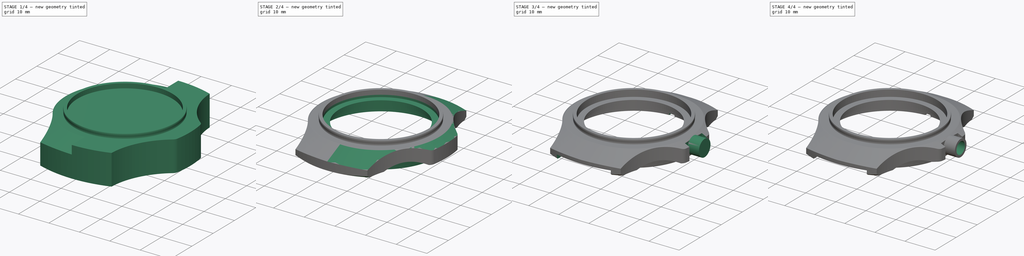
[diagram: build sequence overview — one tinted view per stage of 4, left to right]
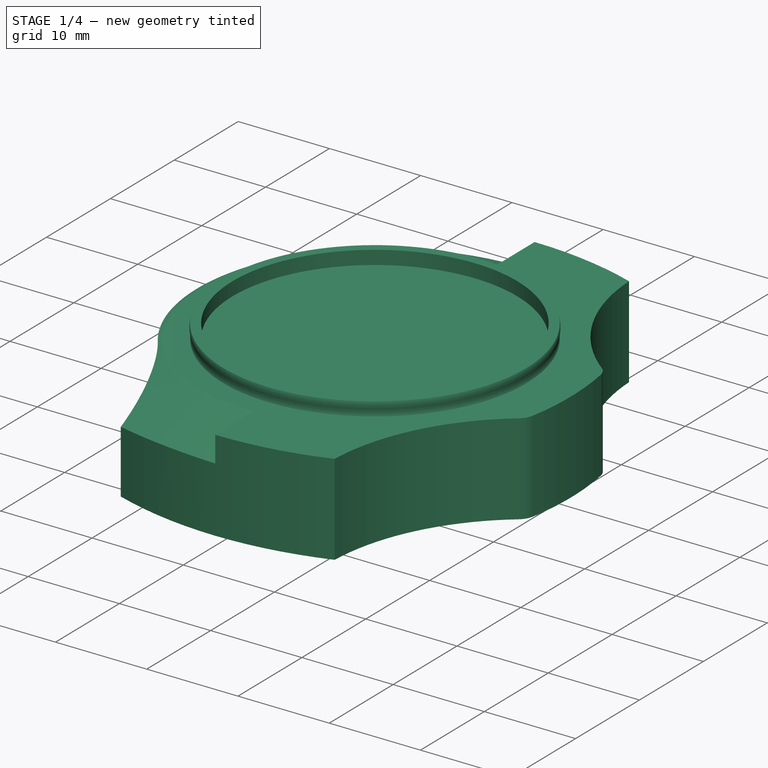
[diagram: stage 1 of 4 — iso view after this stage's code; geometry added in this stage tinted green]
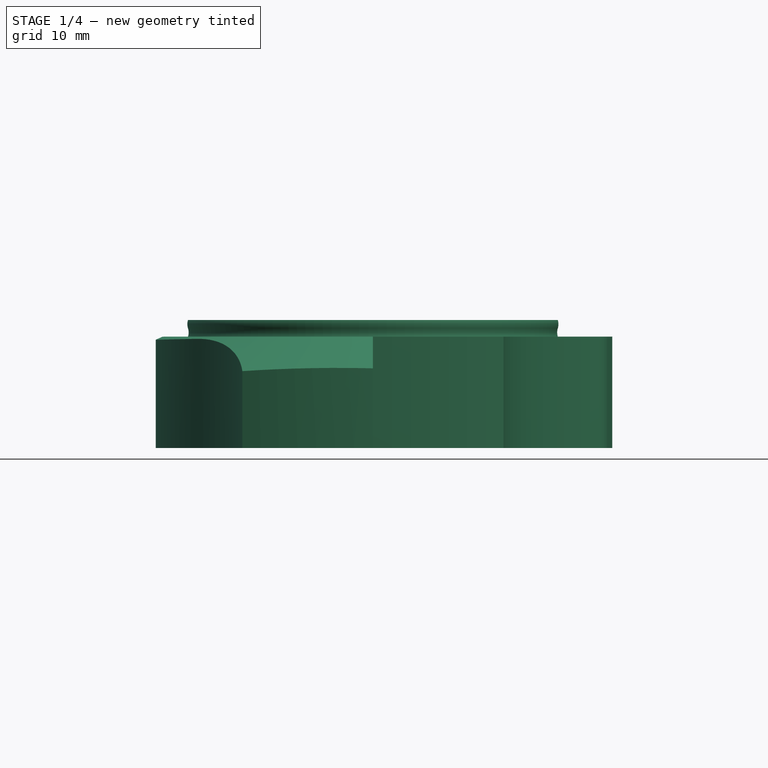
[diagram: stage 1 of 4 — front view after this stage's code; geometry added in this stage tinted green]
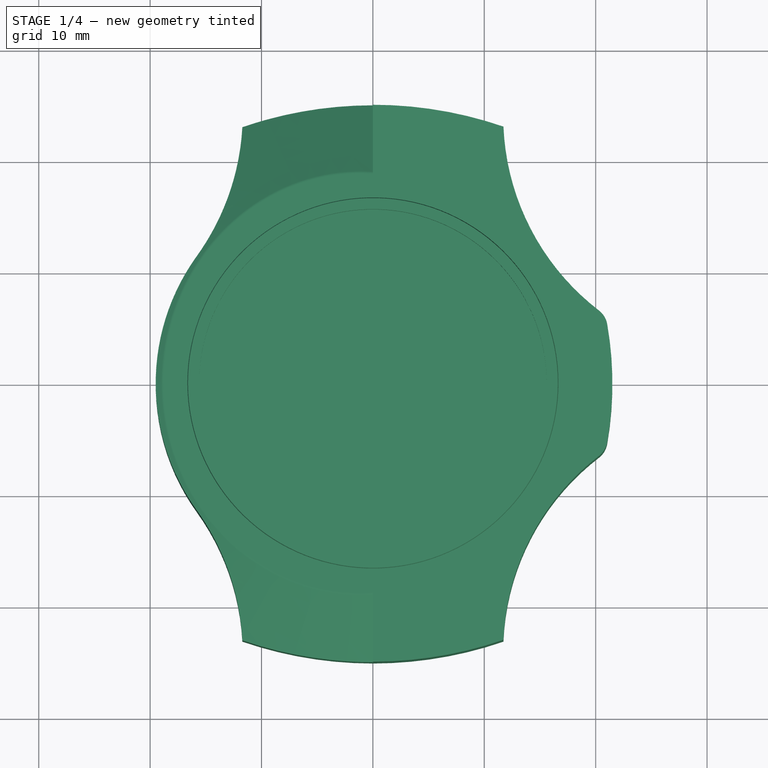
[diagram: stage 1 of 4 — top view after this stage's code; geometry added in this stage tinted green]
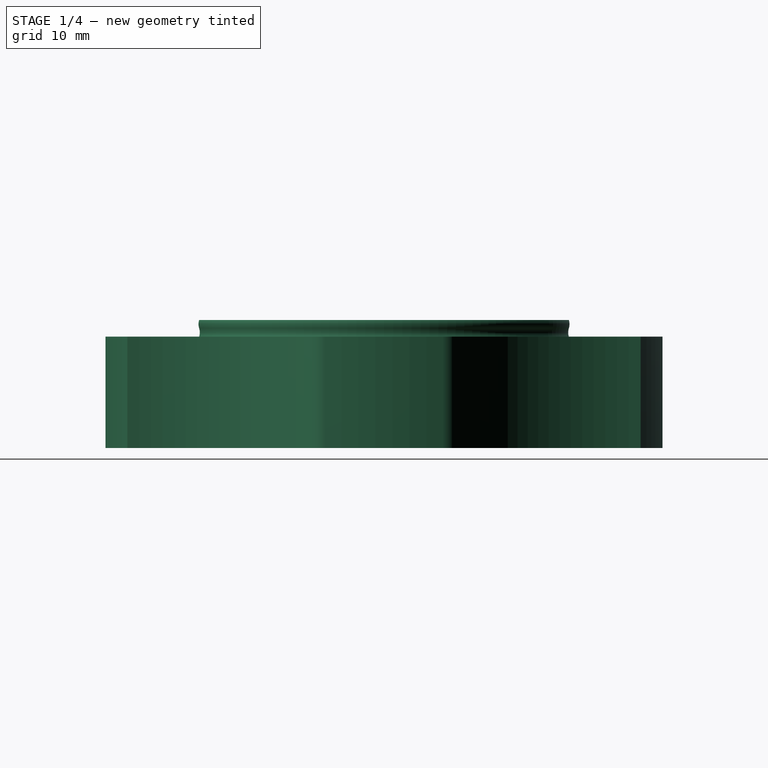
[diagram: stage 1 of 4 — right view after this stage's code; geometry added in this stage tinted green]
FCSTD DOCUMENT  (FreeCAD 0.19R20415 (Git))
Label: Vostok_Amphibia_Case_060
License: All rights reserved
LicenseURL: http://en.wikipedia.org/wiki/All_rights_reserved
objects: Sketcher::SketchObject×15, PartDesign::Pocket×6, PartDesign::Plane×3, PartDesign::Pad×2, PartDesign::Groove×2, Image::ImagePlane×2, PartDesign::Point×1, PartDesign::Revolution×1, PartDesign::SubtractivePipe×1, PartDesign::Mirrored×1, PartDesign::Body×1
note: 45 computed .brp shape members not serialized (recipe doc carries the construction recipe); baked Part::Feature solids carry a one-line shape summary decoded from their .brp

FEATURE [PartDesign::Point] DatumPoint
  AttacherType = Attacher::AttachEnginePoint
FEATURE [Sketcher::SketchObject] Sketch009
  MapMode = 5
  Placement = pos=(0,0,10) rot=(0,0,1;0rad)
  sketch-geometry (7):
    g0: ArcOfEllipse CenterX=0 CenterY=0 CenterZ=0 NormalX=0 NormalY=0 NormalZ=1 MajorRadius=23.015 MinorRadius=22 AngleXU=1.5708 StartAngle=0 EndAngle=3.14159
    g1: LineSegment [constr] StartX=0 StartY=23.015 StartZ=0 EndX=0 EndY=-23.015 EndZ=0
    g2: LineSegment [constr] StartX=-22 StartY=3.8e-15 StartZ=0 EndX=22 EndY=-3.8e-15 EndZ=0
    g3: GeomPoint X=-1.23e-14 Y=6.75945 Z=0
    g4: GeomPoint X=1.23e-14 Y=-6.75945 Z=0
    g5: LineSegment StartX=-10 StartY=20.5 StartZ=0 EndX=0 EndY=20.5 EndZ=0
    g6: LineSegment StartX=-7.1e-15 StartY=-20.5 StartZ=0 EndX=-10 EndY=-20.5 EndZ=0
  constraints (14):
    c: InternalAlignment(g1-g4 -> g0) x4
    c: PointOnObject(g0,g-1)
    c: Perpendicular(g-1,g1)
    c: DistanceX(g2) = -22
    c: PointOnObject(g1,g-2)
    c: PointOnObject(g0,g-2)
    c: PointOnObject(g0,g-2)
    c: PointOnObject(g5,g-2)
    c: Horizontal(g6)
    c: Symmetric(g6,g5,g-1)
    c: DistanceY(g6) = -20.5
    c: Symmetric(g5,g6,g2)
    c: DistanceX(g5) = -10
    c: PointOnObject(g6,g0)
FEATURE [PartDesign::Plane] DatumPlane
  Length = 60
  MapMode = 5
  Placement = pos=(0,0,0) rot=(0.57735,0.57735,0.57735;2.0944rad)
  ResizeMode = 0
  Support = -> [YZ_Plane]
  Width = 60
FEATURE [Sketcher::SketchObject] Sketch003
  MapMode = 5
  Placement = pos=(0,0,0) rot=(0.57735,0.57735,0.57735;2.0944rad)
  Support = -> [DatumPlane]
  sketch-geometry (6):
    g0: ArcOfCircle CenterX=-18.7887 CenterY=9.5 CenterZ=0 NormalX=0 NormalY=0 NormalZ=1 AngleXU=0 Radius=0.5 StartAngle=1.5708 EndAngle=2.00713
    g1: LineSegment StartX=-19 StartY=10 StartZ=0 EndX=-18.7887 EndY=10 EndZ=0
    g2: LineSegment StartX=-19 StartY=9.95315 StartZ=0 EndX=-28.8557 EndY=5.35739 EndZ=0
    g3: ArcOfCircle CenterX=-28.75 CenterY=5.13081 CenterZ=0 NormalX=0 NormalY=0 NormalZ=1 AngleXU=0 Radius=0.25 StartAngle=2.00713 EndAngle=3.14159
    g4: LineSegment StartX=-19 StartY=10 StartZ=0 EndX=-29 EndY=10 EndZ=0
    g5: LineSegment StartX=-29 StartY=10 StartZ=0 EndX=-29 EndY=5.13081 EndZ=0
  constraints (16):
    c: DistanceY(g4) = 10
    c: DistanceX(g4,g4) = 10
    c: Radius(g3) = 0.25
    c: Angle(g4,g2) = 0.436332
    c: Radius(g0) = 0.5
    c: DistanceX(g1) = -19
    c: Horizontal(g1)
    c: Tangent(g0,g1) = 1.5708
    c: Horizontal(g4)
    c: Coincident(g1,g4)
    c: Tangent(g0,g2) = -1.5708
    c: Vertical(g0,g1)
    c: Coincident(g5,g4)
    c: Vertical(g5)
    c: Tangent(g3,g2) = -1.5708
    c: Tangent(g3,g5) = -1.5708
FEATURE [Sketcher::SketchObject] Sketch011
  MapMode = 5
  Placement = pos=(0,0,0) rot=(0.57735,0.57735,0.57735;2.0944rad)
  Support = -> [DatumPlane]
  sketch-geometry (6):
    g0: LineSegment StartX=19 StartY=9.95315 StartZ=0 EndX=28.8557 EndY=5.35739 EndZ=0
    g1: ArcOfCircle CenterX=28.75 CenterY=5.13081 CenterZ=0 NormalX=0 NormalY=0 NormalZ=1 AngleXU=0 Radius=0.25 StartAngle=1.1e-15 EndAngle=1.13446
    g2: ArcOfCircle CenterX=18.7887 CenterY=9.5 CenterZ=0 NormalX=0 NormalY=0 NormalZ=1 AngleXU=0 Radius=0.5 StartAngle=1.13446 EndAngle=1.5708
    g3: LineSegment StartX=19 StartY=10 StartZ=0 EndX=18.7887 EndY=10 EndZ=0
    g4: LineSegment StartX=19 StartY=10 StartZ=0 EndX=29 EndY=10 EndZ=0
    g5: LineSegment StartX=29 StartY=10 StartZ=0 EndX=29 EndY=5.13081 EndZ=0
  constraints (16):
    c: Tangent(g0,g1) = 1.5708
    c: Tangent(g0,g2) = 1.5708
    c: Horizontal(g3)
    c: Tangent(g2,g3) = -1.5708
    c: Radius(g1) = 0.25
    c: Vertical(g0,g3)
    c: Radius(g2) = 0.5
    c: Coincident(g3,g4)
    c: Horizontal(g4)
    c: Coincident(g4,g5)
    c: Vertical(g5)
    c: Tangent(g5,g1) = 1.5708
    c: DistanceX(g4,g4) = 10
    c: DistanceY(g4) = 10
    c: Angle(g0,g4) = 0.436332
    c: DistanceX(g3) = 19
FEATURE [Sketcher::SketchObject] Sketch
  MapMode = 5
  Support = -> [XY_Plane]
  sketch-geometry (17):
    g0: ArcOfCircle CenterX=-5.4e-15 CenterY=-11 CenterZ=0 NormalX=0 NormalY=0 NormalZ=1 AngleXU=0 Radius=36 StartAngle=1.23918 EndAngle=1.90241
    g1: ArcOfCircle CenterX=1.2e-15 CenterY=11 CenterZ=0 NormalX=0 NormalY=0 NormalZ=1 AngleXU=0 Radius=36 StartAngle=4.38078 EndAngle=5.044
    g2: GeomPoint X=0 Y=25 Z=0
    g3: GeomPoint X=0 Y=-25 Z=0
    g4: ArcOfCircle CenterX=33.7007 CenterY=23.9713 CenterZ=0 NormalX=0 NormalY=0 NormalZ=1 AngleXU=0 Radius=22 StartAngle=3.184 EndAngle=4.05666
    g5: ArcOfCircle CenterX=19.067 CenterY=4.94878 CenterZ=0 NormalX=0 NormalY=0 NormalZ=1 AngleXU=0 Radius=2 StartAngle=0.174533 EndAngle=0.91507
    g6: ArcOfCircle CenterX=-8.9989 CenterY=-5.8e-15 CenterZ=0 NormalX=0 NormalY=0 NormalZ=1 AngleXU=0 Radius=30.4989 StartAngle=6.10865 EndAngle=6.45772
    g7: ArcOfCircle CenterX=33.7007 CenterY=-23.9713 CenterZ=0 NormalX=0 NormalY=0 NormalZ=1 AngleXU=0 Radius=22 StartAngle=2.22652 EndAngle=3.09919
    g8: ArcOfCircle CenterX=19.067 CenterY=-4.94878 CenterZ=0 NormalX=0 NormalY=0 NormalZ=1 AngleXU=0 Radius=2 StartAngle=5.36812 EndAngle=6.10865
    g9: ArcOfCircle CenterX=4e-16 CenterY=0 CenterZ=0 NormalX=0 NormalY=0 NormalZ=1 AngleXU=0 Radius=19.5 StartAngle=2.51795 EndAngle=3.76524
    g10: ArcOfCircle CenterX=-33.6879 CenterY=-24.2359 CenterZ=0 NormalX=0 NormalY=0 NormalZ=1 AngleXU=0 Radius=22 StartAngle=0.0544462 EndAngle=0.623644
    g11: ArcOfCircle CenterX=-33.6879 CenterY=24.2359 CenterZ=0 NormalX=0 NormalY=0 NormalZ=1 AngleXU=0 Radius=22 StartAngle=5.65954 EndAngle=6.22874
    g12: GeomPoint X=-19.5 Y=0 Z=0
    g13: GeomPoint X=21.5 Y=0 Z=0
    g14: LineSegment [constr] StartX=19.7366 StartY=4 StartZ=0 EndX=21.2366 EndY=4 EndZ=0
    g15: LineSegment [constr] StartX=21.2366 StartY=-4 StartZ=0 EndX=19.7366 EndY=-4 EndZ=0
    g16: LineSegment [constr] StartX=19.7366 StartY=-4 StartZ=0 EndX=19.7366 EndY=4 EndZ=0
  constraints (47):
    c: Symmetric(g1,g1,g-2)
    c: Symmetric(g0,g0,g-2)
    c: PointOnObject(g2,g0)
    c: PointOnObject(g3,g1)
    c: PointOnObject(g3,g-2)
    c: DistanceY(g3,g2) = 50
    c: Symmetric(g0,g1,g-1)
    c: Symmetric(g3,g2,g-1)
    c: Coincident(g4,g0)
    c: Tangent(g5,g4) = 1.5708
    c: Tangent(g6,g5) = -1.5708
    c: Symmetric(g6,g5,g-1)
    c: Coincident(g7,g1)
    c: Tangent(g7,g8) = 1.5708
    c: Tangent(g8,g6) = -1.5708
    c: Symmetric(g7,g4,g-1)
    c: PointOnObject(g9,g-1)
    c: Coincident(g10,g1)
    c: Tangent(g10,g9) = 1.5708
    c: Coincident(g11,g0)
    c: Tangent(g9,g11) = 1.5708
    c: PointOnObject(g12,g9)
    c: PointOnObject(g12,g-1)
    c: PointOnObject(g13,g6)
    c: PointOnObject(g13,g-1)
    c: DistanceX(g12,g13) = 41
    c: Radius(g0) = 36
    c: Equal(g11,g4)
    c: Equal(g7,g10)
    c: Angle(g0) = 0.663225
    c: DistanceX(g12) = -19.5
    c: Radius(g9) = 19.5
    c: Radius(g4) = 22
    c: Radius(g5) = 2
    c: Angle(g6) = 0.349066
    c: Angle(g7) = 0.872665
    c: DistanceX(g9,g13) = 21.5
    c: Coincident(g15,g16)
    c: Coincident(g16,g14)
    c: Horizontal(g14)
    c: Horizontal(g15)
    c: PointOnObject(g15,g6)
    c: Symmetric(g14,g15,g-1)
    c: DistanceX(g14,g14) = 1.5
    c: DistanceY(g16,g16) = 8
    c: Equal(g15,g14)
    c: DistanceX(g9,g15) = 19.7366
FEATURE [PartDesign::Pad] Pad
  AllowMultiFace = false
  Length = 10
  Length2 = 100
  Profile = -> Sketch
  Type = 0
FEATURE [Sketcher::SketchObject] Sketch001
  MapMode = 5
  Placement = pos=(0,0,0) rot=(1,0,0;1.5708rad)
  Support = -> [XZ_Plane]
  sketch-geometry (5):
    g0: LineSegment StartX=15.6 StartY=10 StartZ=0 EndX=15.6 EndY=11.5 EndZ=0
    g1: LineSegment StartX=15.6 StartY=11.5 StartZ=0 EndX=16.6 EndY=11.5 EndZ=0
    g2: ArcOfCircle CenterX=17.7924 CenterY=10.375 CenterZ=0 NormalX=0 NormalY=0 NormalZ=1 AngleXU=0 Radius=1.25 StartAngle=2.8369 EndAngle=3.44629
    g3: LineSegment StartX=15.6 StartY=10 StartZ=0 EndX=16.6 EndY=10 EndZ=0
    g4: ArcOfCircle CenterX=15.4076 CenterY=11.125 CenterZ=0 NormalX=0 NormalY=0 NormalZ=1 AngleXU=0 Radius=1.25 StartAngle=5.97849 EndAngle=6.58788
  constraints (15):
    c: Vertical(g0)
    c: Coincident(g0,g1)
    c: Horizontal(g1)
    c: Coincident(g0,g3)
    c: Horizontal(g3)
    c: Coincident(g2,g3)
    c: Coincident(g4,g1)
    c: DistanceX(g1,g1) = 1
    c: Tangent(g4,g2) = 1.5708
    c: Vertical(g1,g2)
    c: DistanceY(g0,g0) = 1.5
    c: Symmetric(g1,g2,g2)
    c: Radius(g4) = 1.25
    c: DistanceY(g2) = 10
    c: DistanceX(g0) = 15.6
FEATURE [PartDesign::Revolution] Revolution
  AllowMultiFace = false
  Angle = 360
  Axis = (0,-2e-16,1)
  Base = (0,0,0)
  BaseFeature = -> Pad
  Profile = -> Sketch001
  ReferenceAxis = -> Sketch001 [V_Axis]
  Reversed = true
FEATURE [PartDesign::Plane] DatumPlane001
  Length = 60
  MapMode = 5
  Placement = pos=(0,0,0) rot=(1,0,0;1.5708rad)
  ResizeMode = 0
  Support = -> [XZ_Plane]
  Width = 60
FEATURE [Sketcher::SketchObject] Sketch005
  MapMode = 5
  Placement = pos=(0,0,0) rot=(1,0,0;1.5708rad)
  Support = -> [DatumPlane001]
  sketch-geometry (6):
    g0: LineSegment StartX=-24 StartY=10 StartZ=0 EndX=-19 EndY=10 EndZ=0
    g1: LineSegment StartX=-24 StartY=10 StartZ=0 EndX=-24 EndY=7.46235 EndZ=0
    g2: ArcOfCircle CenterX=-18.7887 CenterY=9.5 CenterZ=0 NormalX=0 NormalY=0 NormalZ=1 AngleXU=0 Radius=0.5 StartAngle=1.5708 EndAngle=2.00713
    g3: LineSegment StartX=-19 StartY=10 StartZ=0 EndX=-18.7887 EndY=10 EndZ=0
    g4: LineSegment StartX=-19 StartY=9.95315 StartZ=0 EndX=-23.8557 EndY=7.68892 EndZ=0
    g5: ArcOfCircle CenterX=-23.75 CenterY=7.46235 CenterZ=0 NormalX=0 NormalY=0 NormalZ=1 AngleXU=0 Radius=0.25 StartAngle=2.00713 EndAngle=3.14159
  constraints (17):
    c: Horizontal(g0)
    c: DistanceY(g0) = 10
    c: DistanceX(g0) = -19
    c: DistanceX(g0,g0) = 5
    c: Coincident(g1,g0)
    c: Vertical(g1)
    c: Coincident(g3,g0)
    c: Coincident(g3,g2)
    c: Tangent(g3,g2)
    c: Horizontal(g3)
    c: Vertical(g2,g0)
    c: Radius(g2) = 0.5
    c: Tangent(g2,g4) = -1.5708
    c: Tangent(g4,g5) = -1.5708
    c: Tangent(g5,g1) = -1.5708
    c: Radius(g5) = 0.25
    c: Angle(g0,g4) = 0.436332
FEATURE [PartDesign::SubtractivePipe] SubtractivePipe
  AllowMultiFace = false
  AuxilleryCurvelinear = true
  AuxillerySpineTangent = false
  BaseFeature = -> Revolution
  Binormal = (0,0,0)
  Mode = 0
  Profile = -> Sketch003
  Sections = -> [Sketch005,Sketch011]
  Spine = -> Sketch009 [Edge1]
  SpineTangent = false
  Transformation = 1
  Transition = 2
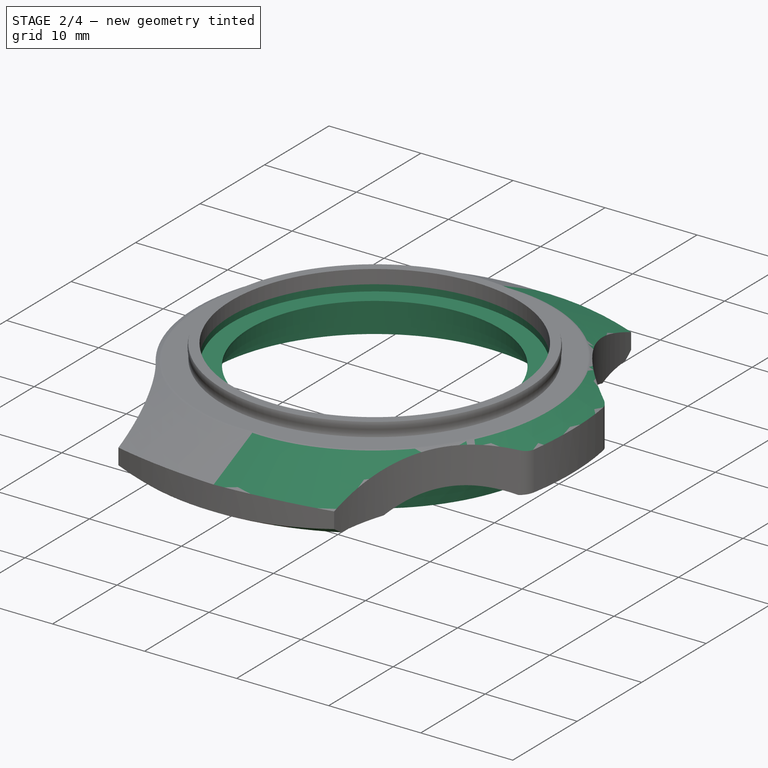
[diagram: stage 2 of 4 — iso view after this stage's code; geometry added in this stage tinted green]
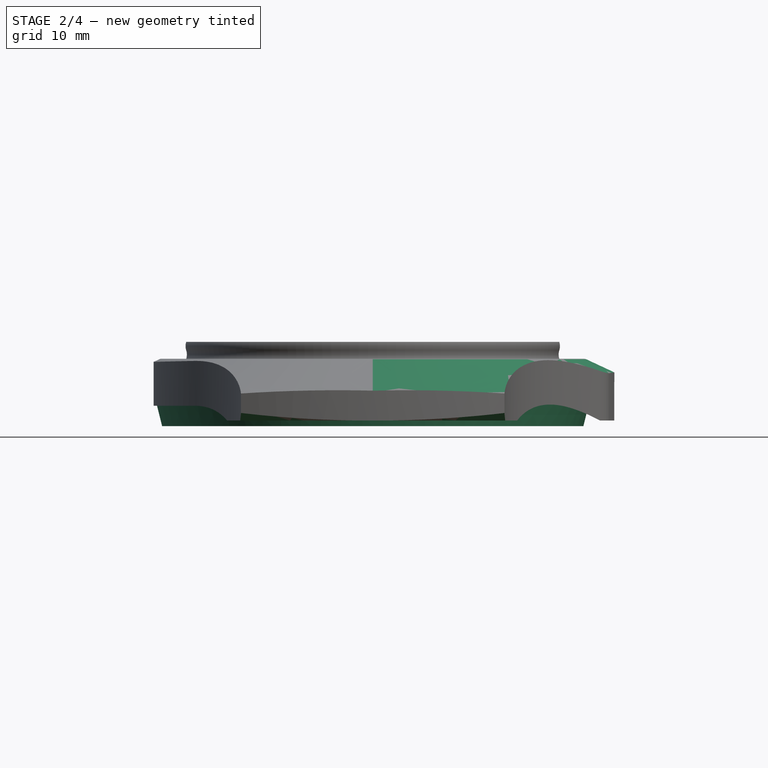
[diagram: stage 2 of 4 — front view after this stage's code; geometry added in this stage tinted green]
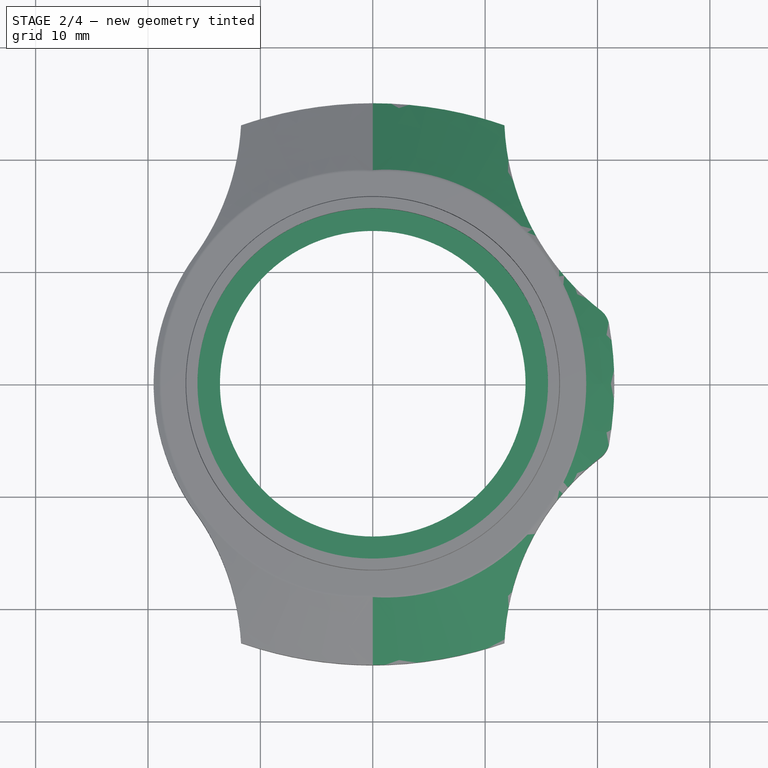
[diagram: stage 2 of 4 — top view after this stage's code; geometry added in this stage tinted green]
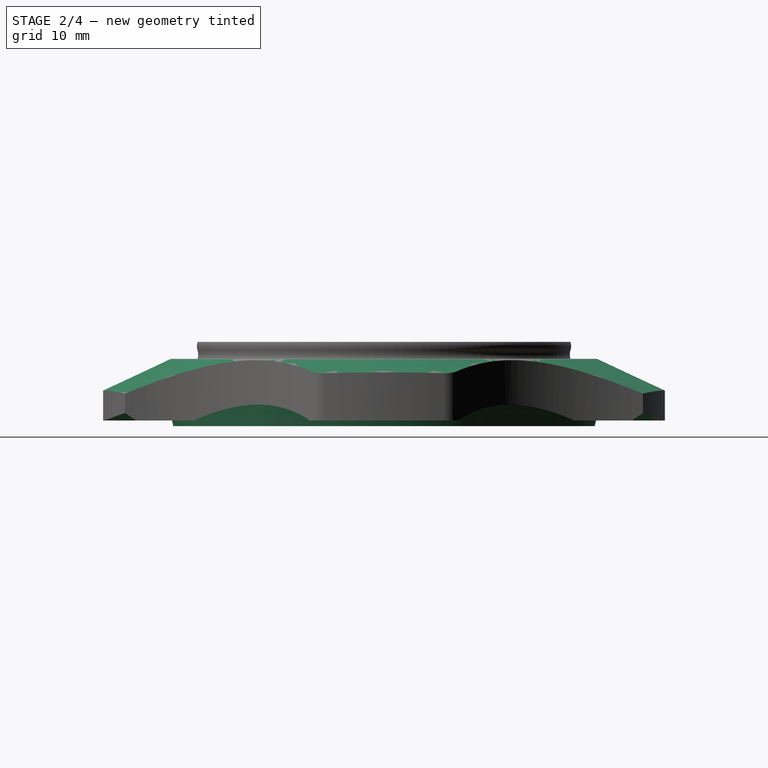
[diagram: stage 2 of 4 — right view after this stage's code; geometry added in this stage tinted green]
FEATURE [PartDesign::Mirrored] Mirrored
  BaseFeature = -> SubtractivePipe
  MirrorPlane = -> YZ_Plane
  Originals = -> [SubtractivePipe]
FEATURE [Sketcher::SketchObject] Sketch013
  MapMode = 5
  Placement = pos=(0,0,0) rot=(1,0,0;1.5708rad)
  Support = -> [XZ_Plane]
  sketch-geometry (4):
    g0: LineSegment StartX=-29.7309 StartY=0 StartZ=0 EndX=29.7309 EndY=0 EndZ=0
    g1: LineSegment StartX=29.7309 StartY=0 StartZ=0 EndX=29.7309 EndY=4 EndZ=0
    g2: LineSegment StartX=29.7309 StartY=4 StartZ=0 EndX=-29.7309 EndY=4 EndZ=0
    g3: LineSegment StartX=-29.7309 StartY=4 StartZ=0 EndX=-29.7309 EndY=0 EndZ=0
  constraints (10):
    c: Coincident(g0,g1)
    c: Coincident(g1,g2)
    c: Coincident(g2,g3)
    c: Coincident(g3,g0)
    c: Horizontal(g0)
    c: Vertical(g1)
    c: Vertical(g3)
    c: PointOnObject(g0,g-1)
    c: DistanceY(g1,g1) = 4
    c: Symmetric(g1,g2,g-2)
FEATURE [PartDesign::Pocket] Pocket
  AllowMultiFace = false
  BaseFeature = -> Mirrored
  Length = 5
  Length2 = 100
  Midplane = true
  Profile = -> Sketch013
  Type = 1
FEATURE [Sketcher::SketchObject] Sketch014
  MapMode = 5
  Placement = pos=(0,0,0) rot=(0.57735,0.57735,0.57735;2.0944rad)
  Support = -> [YZ_Plane]
  sketch-geometry (20):
    g0: LineSegment StartX=19.25 StartY=6 StartZ=0 EndX=18.5 EndY=3 EndZ=0
    g1: LineSegment StartX=18.5 StartY=3 StartZ=0 EndX=27 EndY=3 EndZ=0
    g2: LineSegment StartX=0 StartY=0 StartZ=0 EndX=0 EndY=19.1 EndZ=0
    g3: LineSegment StartX=18 StartY=6 StartZ=0 EndX=15.5 EndY=6 EndZ=0
    g4: LineSegment StartX=15.5 StartY=6 StartZ=0 EndX=15.5 EndY=7.5 EndZ=0
    g5: LineSegment StartX=15.5 StartY=7.5 StartZ=0 EndX=14.25 EndY=7.5 EndZ=0
    g6: LineSegment StartX=14.25 StartY=7.5 StartZ=0 EndX=14.25 EndY=9.1 EndZ=0
    g7: LineSegment StartX=14.25 StartY=9.1 StartZ=0 EndX=13.6 EndY=9.1 EndZ=0
    g8: LineSegment StartX=15.6 StartY=19.1 StartZ=0 EndX=0 EndY=19.1 EndZ=0
    g9: LineSegment StartX=13.6 StartY=9.1 StartZ=0 EndX=13.6 EndY=9.3 EndZ=0
    g10: LineSegment StartX=13.6 StartY=9.3 StartZ=0 EndX=15.6 EndY=9.3 EndZ=0
    g11: LineSegment StartX=15.6 StartY=9.3 StartZ=0 EndX=15.6 EndY=19.1 EndZ=0
    g12: LineSegment StartX=18 StartY=6 StartZ=0 EndX=18 EndY=4 EndZ=0
    g13: LineSegment StartX=19.25 StartY=6 StartZ=0 EndX=21.2725 EndY=4.5 EndZ=0
    g14: LineSegment StartX=21.2725 StartY=4.5 StartZ=0 EndX=25.0128 EndY=4.5 EndZ=0
    g15: LineSegment StartX=27 StartY=4.5 StartZ=0 EndX=27 EndY=3 EndZ=0
    g16: LineSegment StartX=25.0128 StartY=4.5 StartZ=0 EndX=27 EndY=6.09281 EndZ=0
    g17: LineSegment StartX=27 StartY=6.09281 StartZ=0 EndX=27 EndY=4.5 EndZ=0
    g18: LineSegment StartX=0 StartY=0 StartZ=0 EndX=18 EndY=0 EndZ=0
    g19: LineSegment StartX=18 StartY=0 StartZ=0 EndX=18 EndY=4 EndZ=0
  constraints (54):
    c: DistanceX(g12) = 18
    c: Coincident(g0,g1)
    c: Horizontal(g1)
    c: Vertical(g2)
    c: Horizontal(g3)
    c: Coincident(g3,g4)
    c: Vertical(g4)
    c: Coincident(g4,g5)
    c: Horizontal(g5)
    c: Coincident(g5,g6)
    c: Vertical(g6)
    c: DistanceY(g4,g4) = 1.5
    c: Coincident(g6,g7)
    c: Horizontal(g7)
    c: Horizontal(g8)
    c: DistanceY(g7,g8) = 10
    c: Coincident(g2,g8)
    c: DistanceX(g5) = 14.25
    c: Coincident(g7,g9)
    c: Vertical(g9)
    c: Coincident(g9,g10)
    c: Horizontal(g10)
    c: Coincident(g8,g11)
    c: DistanceY(g7,g9) = 0.2
    c: DistanceX(g3,g3) = 2.5
    c: DistanceY(g12,g10) = 5.3
    c: DistanceX(g8) = 15.6
    c: Vertical(g11)
    c: DistanceX(g10,g10) = 2
    c: Coincident(g12,g3)
    c: Vertical(g12)
    c: DistanceX(g13) = 19.25
    c: Coincident(g13,g14)
    c: Coincident(g15,g1)
    c: Vertical(g15)
    c: Horizontal(g14)
    c: DistanceY(g13,g13) = 1.5
    c: DistanceX(g1) = 27
    c: Coincident(g16,g17)
    c: Coincident(g17,g15)
    c: Coincident(g14,g16)
    c: Vertical(g17)
    c: DistanceX(g0) = 18.5
    c: Coincident(g0,g13)
    c: Horizontal(g3,g0)
    c: DistanceY(g0) = 3
    c: DistanceY(g10) = 9.3
    c: Coincident(g-1,g2)
    c: Coincident(g2,g18)
    c: PointOnObject(g18,g-1)
    c: Coincident(g18,g19)
    c: Coincident(g19,g12)
    c: Vertical(g19)
    c: DistanceY(g12,g12) = 2
FEATURE [PartDesign::Groove] Groove
  AllowMultiFace = false
  Angle = 360
  Axis = (-2e-16,3e-16,1)
  Base = (0,0,0)
  BaseFeature = -> Pocket
  Profile = -> Sketch014
  ReferenceAxis = -> Sketch014 [V_Axis]
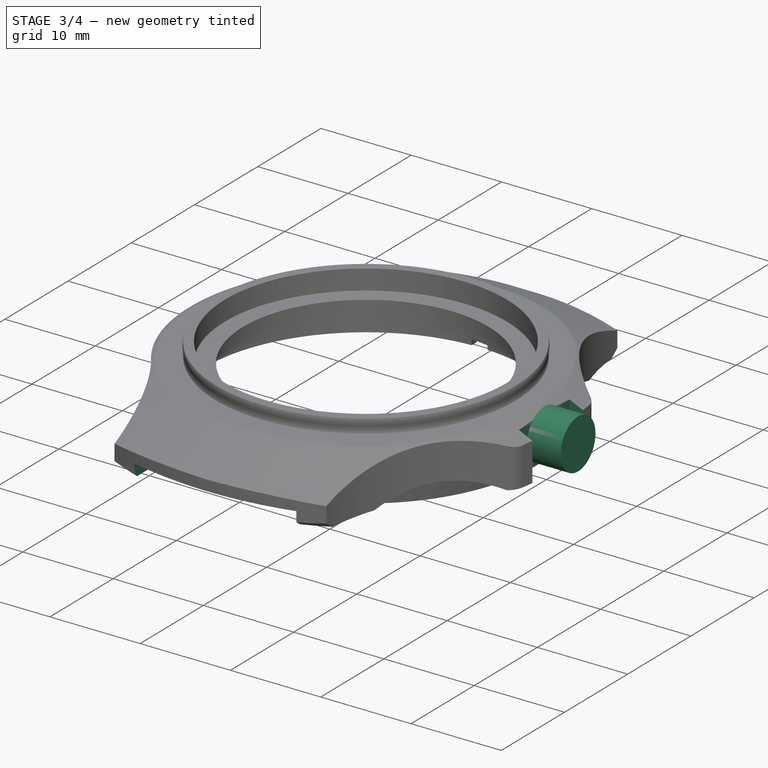
[diagram: stage 3 of 4 — iso view after this stage's code; geometry added in this stage tinted green]
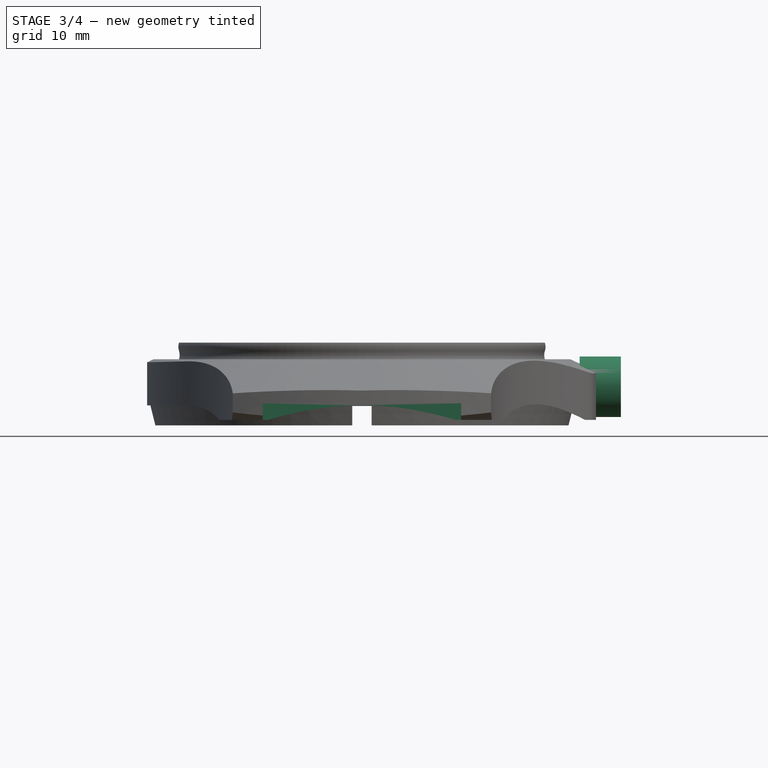
[diagram: stage 3 of 4 — front view after this stage's code; geometry added in this stage tinted green]
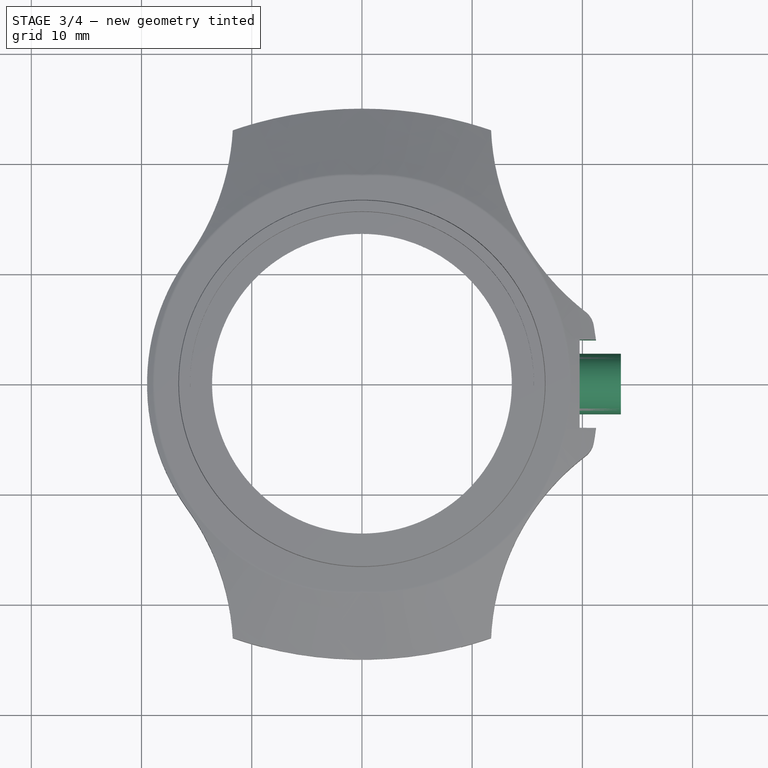
[diagram: stage 3 of 4 — top view after this stage's code; geometry added in this stage tinted green]
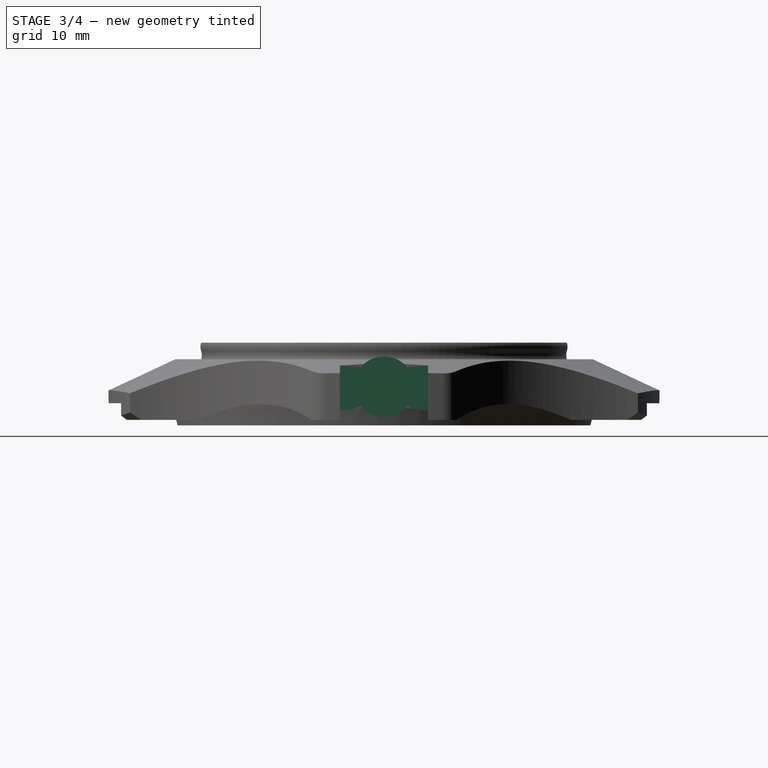
[diagram: stage 3 of 4 — right view after this stage's code; geometry added in this stage tinted green]
FEATURE [Sketcher::SketchObject] Sketch020
  MapMode = 5
  Placement = pos=(0,0,0) rot=(1,0,0;1.5708rad)
  Support = -> [XZ_Plane]
  sketch-geometry (4):
    g0: LineSegment StartX=-0.875 StartY=5.75 StartZ=0 EndX=0.875 EndY=5.75 EndZ=0
    g1: LineSegment StartX=0.875 StartY=5.75 StartZ=0 EndX=0.875 EndY=4 EndZ=0
    g2: LineSegment StartX=0.875 StartY=4 StartZ=0 EndX=-0.875 EndY=4 EndZ=0
    g3: LineSegment StartX=-0.875 StartY=4 StartZ=0 EndX=-0.875 EndY=5.75 EndZ=0
  constraints (11):
    c: Coincident(g0,g1)
    c: Coincident(g1,g2)
    c: Coincident(g2,g3)
    c: Coincident(g3,g0)
    c: Horizontal(g2)
    c: Vertical(g1)
    c: Vertical(g3)
    c: Equal(g0,g3)
    c: Symmetric(g0,g0,g-2)
    c: DistanceY(g3,g3) = 1.75
    c: DistanceY(g1) = 4
FEATURE [PartDesign::Pocket] Pocket001
  AllowMultiFace = false
  BaseFeature = -> Groove
  Length = 5
  Length2 = 100
  Midplane = true
  Profile = -> Sketch020
  Type = 1
FEATURE [PartDesign::Plane] DatumPlane002
  AttachmentOffset = pos=(0,0,19.75) rot=(0,0,1;0rad)
  Length = 60
  MapMode = 2
  Placement = pos=(19.75,-4.4e-15,4.4e-15) rot=(0.57735,0.57735,0.57735;2.0944rad)
  ResizeMode = 0
  Support = -> [YZ_Plane]
  Width = 60
FEATURE [Sketcher::SketchObject] Sketch021  label="  "
  MapMode = 2
  Placement = pos=(19.75,-4.4e-15,4.4e-15) rot=(0.57735,0.57735,0.57735;2.0944rad)
  Support = -> [DatumPlane002]
  sketch-geometry (4):
    g0: LineSegment StartX=-4 StartY=20 StartZ=0 EndX=4 EndY=20 EndZ=0
    g1: LineSegment StartX=4 StartY=20 StartZ=0 EndX=4 EndY=0 EndZ=0
    g2: LineSegment StartX=4 StartY=0 StartZ=0 EndX=-4 EndY=0 EndZ=0
    g3: LineSegment StartX=-4 StartY=0 StartZ=0 EndX=-4 EndY=20 EndZ=0
  constraints (11):
    c: Coincident(g0,g1)
    c: Coincident(g1,g2)
    c: Coincident(g2,g3)
    c: Coincident(g3,g0)
    c: Horizontal(g2)
    c: Vertical(g1)
    c: Vertical(g3)
    c: Symmetric(g0,g0,g-2)
    c: DistanceX(g0,g0) = 8
    c: DistanceY(g1,g1) = 20
    c: PointOnObject(g-1,g2)
FEATURE [Sketcher::SketchObject] Sketch028
  MapMode = 5
  Placement = pos=(19.75,-4.4e-15,4.4e-15) rot=(-0.57735,0.57735,0.57735;4.18879rad)
  Support = -> [DatumPlane002]
  sketch-geometry (1):
    g0: Circle CenterX=0 CenterY=7.5 CenterZ=0 NormalX=0 NormalY=0 NormalZ=1 AngleXU=0 Radius=2.75
  constraints (3):
    c: PointOnObject(g0,g-2)
    c: DistanceY(g0) = 7.5
    c: Radius(g0) = 2.75
FEATURE [Sketcher::SketchObject] Sketch029
  MapMode = 5
  Placement = pos=(0,0,0) rot=(1,0,0;1.5708rad)
  Support = -> [XZ_Plane]
  sketch-geometry (6):
    g0: LineSegment StartX=0 StartY=8.25 StartZ=0 EndX=0 EndY=7.5 EndZ=0
    g1: LineSegment StartX=0 StartY=7.5 StartZ=0 EndX=25 EndY=7.5 EndZ=0
    g2: LineSegment StartX=25 StartY=7.5 StartZ=0 EndX=25 EndY=9.5 EndZ=0
    g3: LineSegment StartX=25 StartY=9.5 StartZ=0 EndX=20.75 EndY=9.5 EndZ=0
    g4: LineSegment StartX=20.75 StartY=9.5 StartZ=0 EndX=20.75 EndY=8.25 EndZ=0
    g5: LineSegment StartX=20.75 StartY=8.25 StartZ=0 EndX=0 EndY=8.25 EndZ=0
  constraints (18):
    c: Coincident(g0,g1)
    c: Horizontal(g1)
    c: Coincident(g1,g2)
    c: Vertical(g2)
    c: Coincident(g2,g3)
    c: Horizontal(g3)
    c: Coincident(g3,g4)
    c: Vertical(g4)
    c: Coincident(g4,g5)
    c: Coincident(g5,g0)
    c: PointOnObject(g0,g-2)
    c: Vertical(g0)
    c: Horizontal(g5)
    c: DistanceY(g1) = 7.5
    c: DistanceY(g1,g4) = 0.75
    c: DistanceY(g2,g2) = 2
    c: DistanceX(g2) = 25
    c: DistanceX(g3) = 20.75
FEATURE [Sketcher::SketchObject] Sketch030
  MapMode = 5
  Placement = pos=(0,0,0) rot=(0.57735,0.57735,0.57735;2.0944rad)
  Support = -> [YZ_Plane]
  sketch-geometry (8):
    g0: LineSegment StartX=-29.5 StartY=6 StartZ=0 EndX=-19.5 EndY=6 EndZ=0
    g1: LineSegment StartX=-19.5 StartY=3.4 StartZ=0 EndX=-29.5 EndY=3.4 EndZ=0
    g2: LineSegment StartX=-29.5 StartY=3.4 StartZ=0 EndX=-29.5 EndY=6 EndZ=0
    g3: LineSegment StartX=-19.5 StartY=6 StartZ=0 EndX=-19.5 EndY=3.4 EndZ=0
    g4: LineSegment StartX=19.5 StartY=6 StartZ=0 EndX=29.5 EndY=6 EndZ=0
    g5: LineSegment StartX=29.5 StartY=6 StartZ=0 EndX=29.5 EndY=3.4 EndZ=0
    g6: LineSegment StartX=29.5 StartY=3.4 StartZ=0 EndX=19.5 EndY=3.4 EndZ=0
    g7: LineSegment StartX=19.5 StartY=3.4 StartZ=0 EndX=19.5 EndY=6 EndZ=0
  constraints (21):
    c: Horizontal(g0)
    c: Horizontal(g1)
    c: Coincident(g1,g2)
    c: Vertical(g2)
    c: Coincident(g0,g2)
    c: DistanceY(g0) = 6
    c: DistanceY(g2,g2) = 2.6
    c: DistanceX(g0,g0) = 10
    c: Coincident(g0,g3)
    c: Coincident(g3,g1)
    c: Vertical(g3)
    c: DistanceX(g1) = -19.5
    c: Coincident(g4,g5)
    c: Coincident(g5,g6)
    c: Coincident(g6,g7)
    c: Coincident(g7,g4)
    c: Horizontal(g6)
    c: Vertical(g5)
    c: Symmetric(g4,g0,g-2)
    c: Symmetric(g4,g0,g-2)
    c: Symmetric(g6,g1,g-2)
FEATURE [Image::ImagePlane] ImagePlane
  Placement = pos=(-1,0,0) rot=(0,0,1;0rad)
  XSize = 80.179
  YSize = 120.016
FEATURE [Image::ImagePlane] ImagePlane001
  Placement = pos=(1.4,-0.5,5) rot=(0,1,0;3.14159rad)
  XSize = 54.5666
  YSize = 54.5666
FEATURE [PartDesign::Pocket] Pocket002
  BaseFeature = -> Pocket001
  Length = 18
  Length2 = 100
  Midplane = true
  Profile = -> Sketch030
  Type = 0
FEATURE [PartDesign::Pocket] Pocket003
  BaseFeature = -> Pocket002
  Length = 5
  Length2 = 100
  Profile = -> Sketch021
  Reversed = true
  Type = 0
FEATURE [PartDesign::Pad] Pad001
  BaseFeature = -> Pocket003
  Length = 3.75
  Length2 = 100
  Profile = -> Sketch028
  Reversed = true
  Type = 0
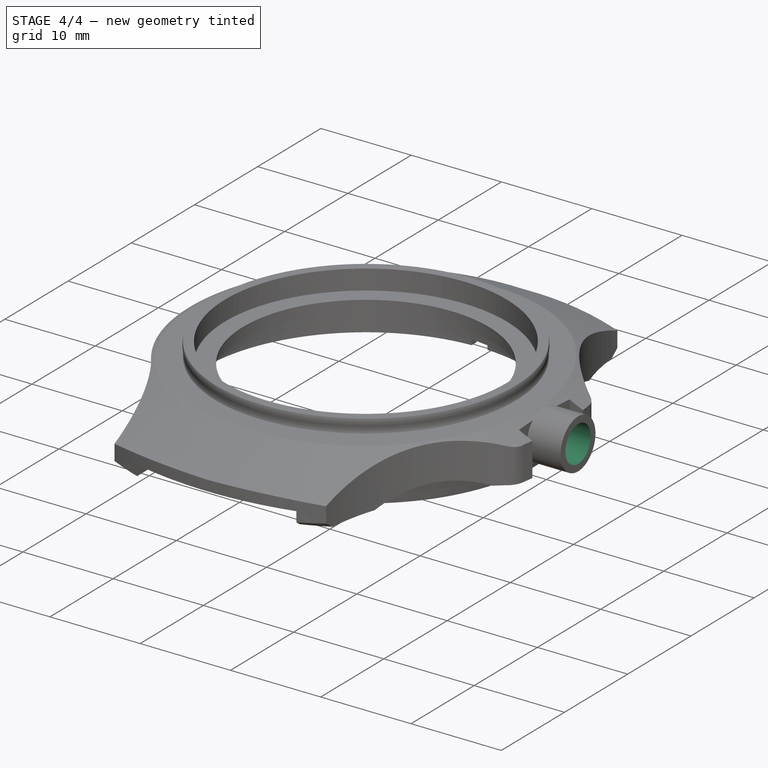
[diagram: stage 4 of 4 — iso view after this stage's code; geometry added in this stage tinted green]
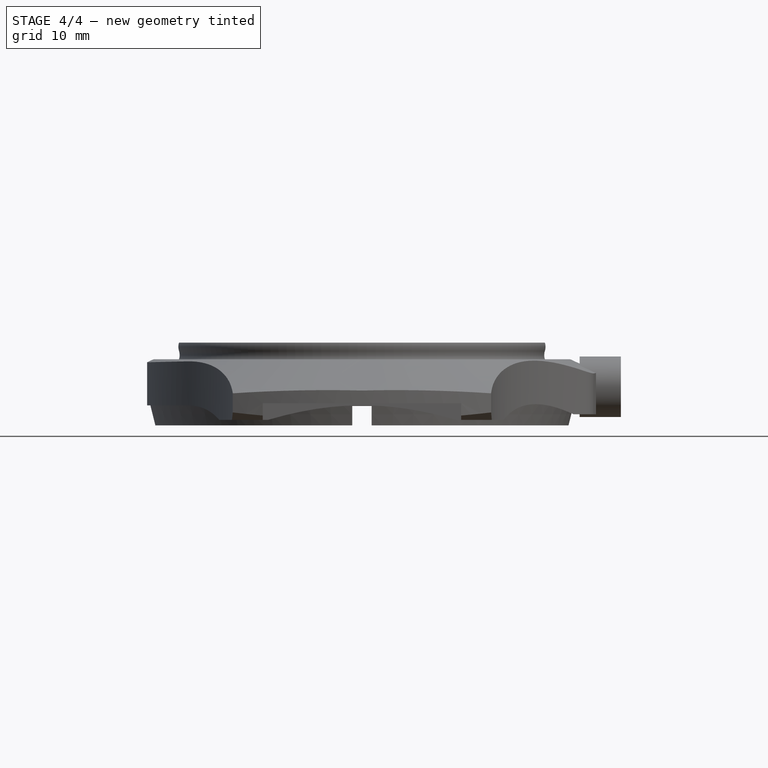
[diagram: stage 4 of 4 — front view after this stage's code; geometry added in this stage tinted green]
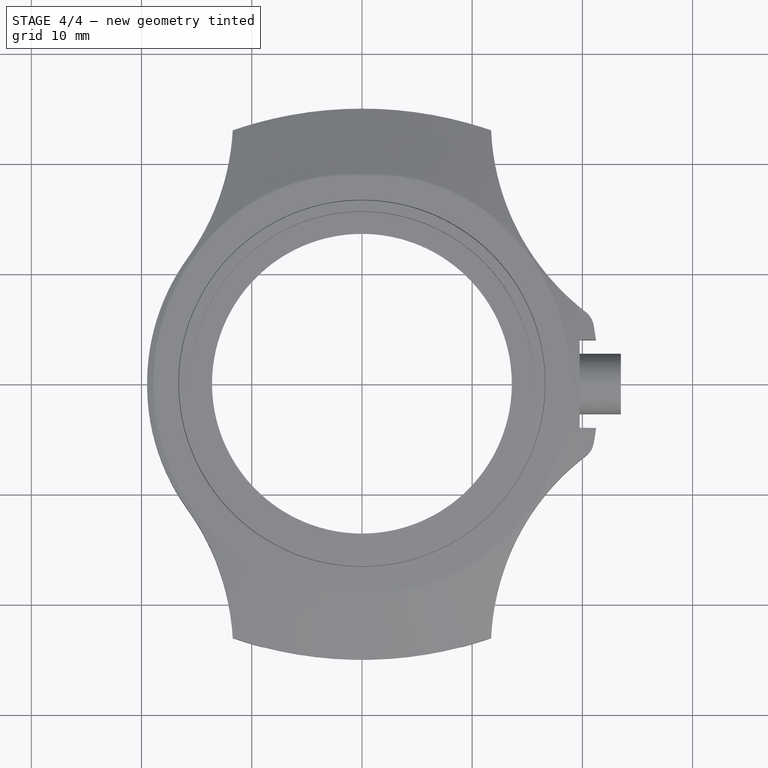
[diagram: stage 4 of 4 — top view after this stage's code; geometry added in this stage tinted green]
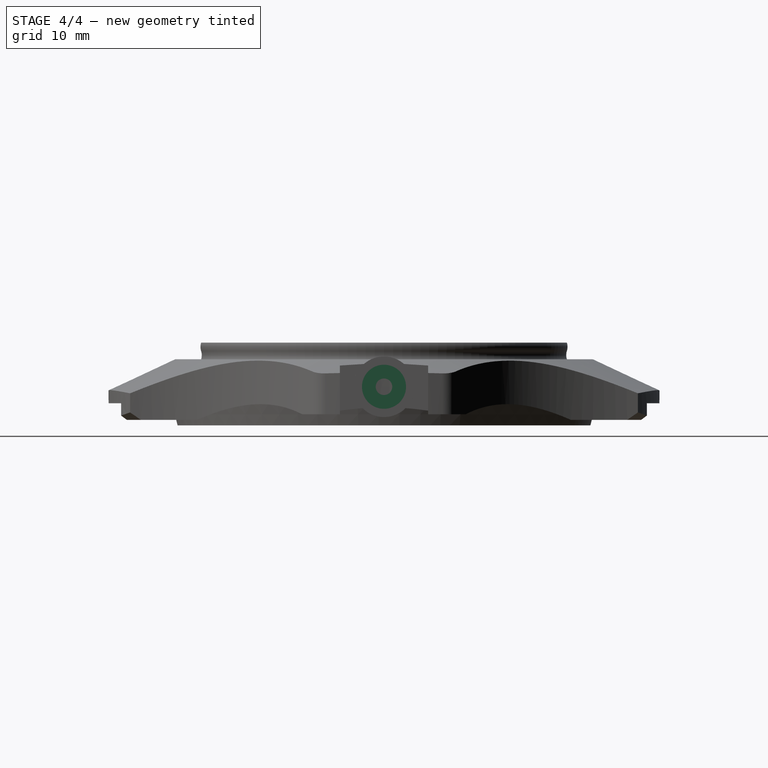
[diagram: stage 4 of 4 — right view after this stage's code; geometry added in this stage tinted green]
FEATURE [PartDesign::Groove] Groove001
  Angle = 360
  Axis = (1,0,0)
  Base = (0,-1.7e-15,7.5)
  BaseFeature = -> Pad001
  Profile = -> Sketch029
  ReferenceAxis = -> Sketch029 [Edge2]
FEATURE [Sketcher::SketchObject] Sketch031
  AttachmentOffset = pos=(0,0,-1) rot=(0,0,1;0rad)
  MapMode = 5
  Placement = pos=(18.75,-4.3e-15,4.3e-15) rot=(0.57735,0.57735,0.57735;2.0944rad)
  Support = -> [DatumPlane002]
  sketch-geometry (8):
    g0: LineSegment StartX=-7.5 StartY=5 StartZ=0 EndX=-3.5 EndY=5 EndZ=0
    g1: LineSegment StartX=-3.5 StartY=5 StartZ=0 EndX=-3.5 EndY=3 EndZ=0
    g2: LineSegment StartX=-3.5 StartY=3 StartZ=0 EndX=-7.5 EndY=3 EndZ=0
    g3: LineSegment StartX=-7.5 StartY=3 StartZ=0 EndX=-7.5 EndY=5 EndZ=0
    g4: LineSegment StartX=3.5 StartY=5 StartZ=0 EndX=7.5 EndY=5 EndZ=0
    g5: LineSegment StartX=7.5 StartY=5 StartZ=0 EndX=7.5 EndY=3 EndZ=0
    g6: LineSegment StartX=7.5 StartY=3 StartZ=0 EndX=3.5 EndY=3 EndZ=0
    g7: LineSegment StartX=3.5 StartY=3 StartZ=0 EndX=3.5 EndY=5 EndZ=0
  constraints (21):
    c: Coincident(g0,g1)
    c: Coincident(g1,g2)
    c: Coincident(g2,g3)
    c: Coincident(g3,g0)
    c: Horizontal(g0)
    c: Horizontal(g2)
    c: Vertical(g1)
    c: Vertical(g3)
    c: Coincident(g4,g5)
    c: Coincident(g5,g6)
    c: Coincident(g6,g7)
    c: Coincident(g7,g4)
    c: Horizontal(g6)
    c: Vertical(g5)
    c: Symmetric(g0,g4,g-2)
    c: Symmetric(g1,g6,g-2)
    c: Symmetric(g4,g0,g-2)
    c: DistanceX(g0,g0) = 4
    c: DistanceX(g0,g4) = 7
    c: DistanceY(g1,g1) = 2
    c: DistanceY(g0) = 5
FEATURE [PartDesign::Pocket] Pocket004
  BaseFeature = -> Groove001
  Length = 5
  Length2 = 100
  Profile = -> Sketch031
  Reversed = true
  Type = 0
FEATURE [Sketcher::SketchObject] Sketch032
  MapMode = 5
  Placement = pos=(0,0,0) rot=(0.57735,0.57735,0.57735;2.0944rad)
  Support = -> [YZ_Plane]
  sketch-geometry (2):
    g0: Circle CenterX=22 CenterY=5.25 CenterZ=0 NormalX=0 NormalY=0 NormalZ=1 AngleXU=0 Radius=0.25
    g1: Circle CenterX=-22 CenterY=5.25 CenterZ=0 NormalX=0 NormalY=0 NormalZ=1 AngleXU=0 Radius=0.25
  constraints (5):
    c: Equal(g1,g0)
    c: Radius(g0) = 0.25
    c: Symmetric(g0,g1,g-2)
    c: DistanceX(g0) = 22
    c: DistanceY(g0) = 5.25
FEATURE [PartDesign::Pocket] Pocket005
  BaseFeature = -> Pocket004
  Length = 18.5
  Length2 = 100
  Midplane = true
  Profile = -> Sketch032
  Type = 0
FEATURE [PartDesign::Body] Body  label="060_Case"
  Group = -> [Sketch,Pad,Sketch001,Revolution,DatumPlane,DatumPlane001,DatumPoint,Sketch003,Sketch005,Sketch009,Sketch011,Sketch013,Sketch014,Sketch020,Sketch021,SubtractivePipe,Mirrored,Pocket,Groove,Pocket001,DatumPlane002,Sketch028,Sketch029,Sketch030,Pocket002,Pocket003,Pad001,Groove001,Sketch031,Pocket004,Sketch032,Pocket005]
  Origin = -> Origin
  Tip = -> Pocket005
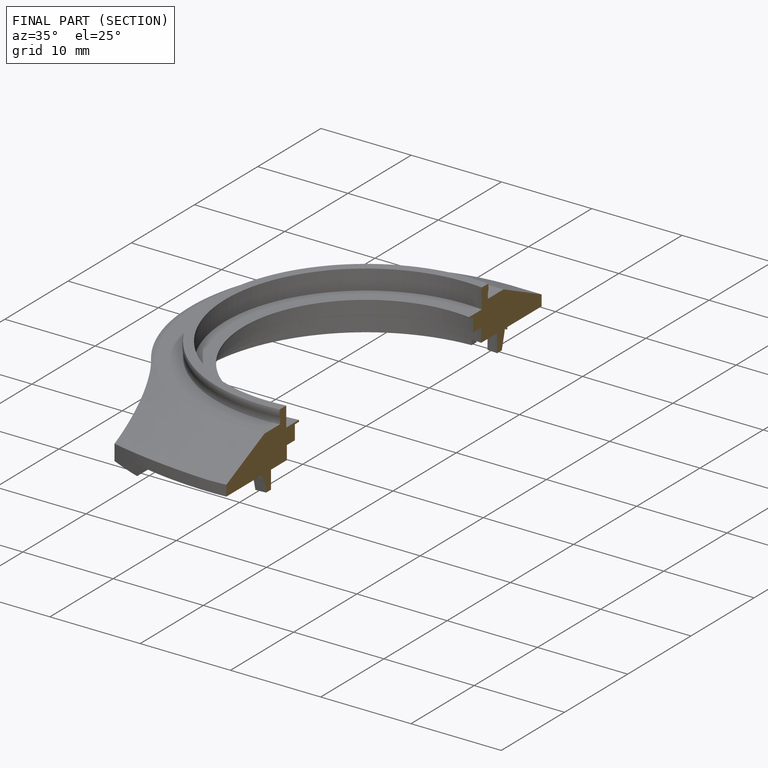
[diagram: finished part — half-section view (interior)]
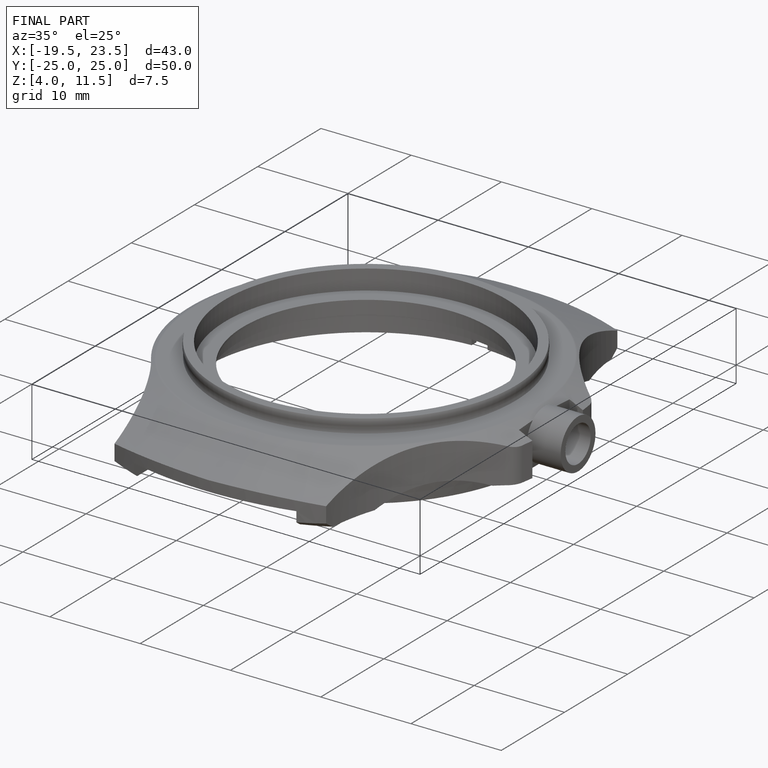
[diagram: finished part — iso view with bounding-box wireframe]
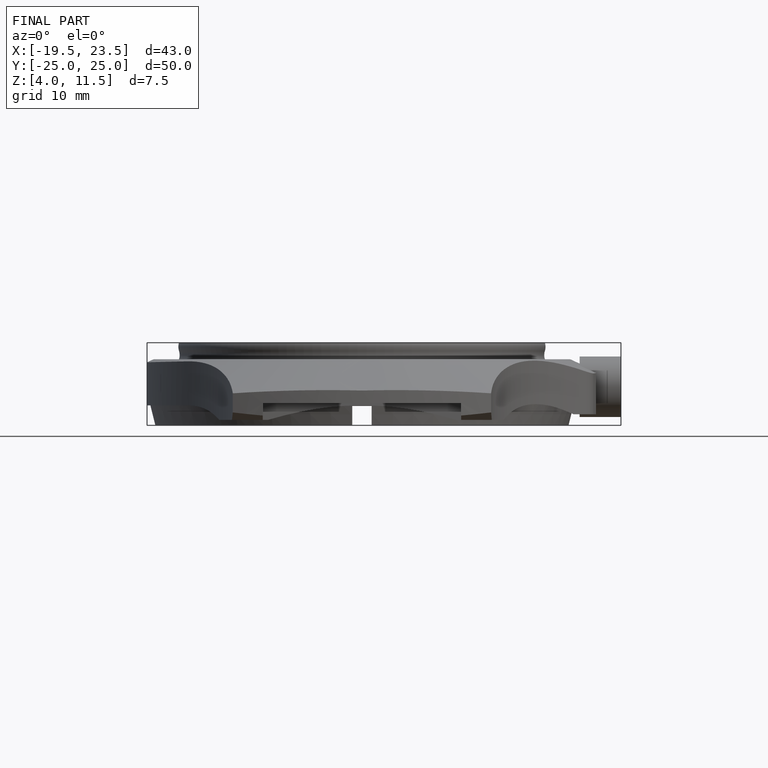
[diagram: finished part — front view with bounding-box wireframe]
